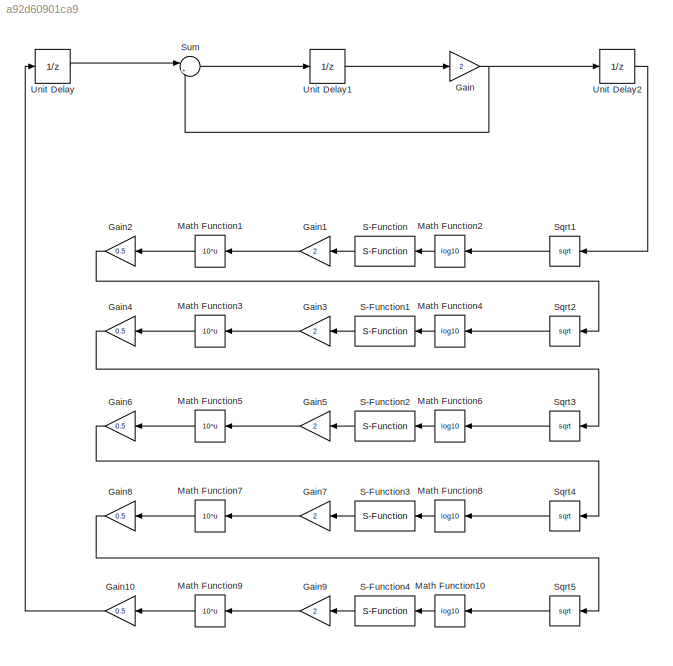
MODEL slx_a92d60901ca9
KIND model
CONFIG AbsTol = auto
CONFIG FixedStep = 0.002
CONFIG MaxStep = auto
CONFIG MinStep = auto
CONFIG RelTol = 1e-3
CONFIG SampleTimeConstraint = Unconstrained
CONFIG Solver = FixedStepDiscrete
CONFIG SolverMode = SingleTasking
CONFIG SolverName = FixedStepDiscrete
CONFIG StartTime = 0.0
CONFIG StopTime = 10.0
BLOCK [Gain] Gain
  Gain = 2
  OutDataTypeStr = Inherit: Inherit via internal rule
  ParamDataTypeStr = Inherit: Inherit via internal rule
  SampleTime = 0.002
  SaturateOnIntegerOverflow = off
BLOCK [Gain] Gain1
  Gain = 2
  OutDataTypeStr = Inherit: Inherit via internal rule
  ParamDataTypeStr = Inherit: Inherit via internal rule
  SampleTime = [0.002,0]
  SaturateOnIntegerOverflow = off
BLOCK [Gain] Gain10
  Gain = 0.5
  OutDataTypeStr = Inherit: Inherit via internal rule
  ParamDataTypeStr = Inherit: Inherit via internal rule
  SampleTime = [0.01,0]
  SaturateOnIntegerOverflow = off
BLOCK [Gain] Gain2
  Gain = 0.5
  OutDataTypeStr = Inherit: Inherit via internal rule
  ParamDataTypeStr = Inherit: Inherit via internal rule
  SampleTime = [0.002,0]
  SaturateOnIntegerOverflow = off
BLOCK [Gain] Gain3
  Gain = 2
  OutDataTypeStr = Inherit: Inherit via internal rule
  ParamDataTypeStr = Inherit: Inherit via internal rule
  SampleTime = [0.004,0]
  SaturateOnIntegerOverflow = off
BLOCK [Gain] Gain4
  Gain = 0.5
  OutDataTypeStr = Inherit: Inherit via internal rule
  ParamDataTypeStr = Inherit: Inherit via internal rule
  SampleTime = [0.004,0]
  SaturateOnIntegerOverflow = off
BLOCK [Gain] Gain5
  Gain = 2
  OutDataTypeStr = Inherit: Inherit via internal rule
  ParamDataTypeStr = Inherit: Inherit via internal rule
  SampleTime = [0.006,0]
  SaturateOnIntegerOverflow = off
BLOCK [Gain] Gain6
  Gain = 0.5
  OutDataTypeStr = Inherit: Inherit via internal rule
  ParamDataTypeStr = Inherit: Inherit via internal rule
  SampleTime = [0.006,0]
  SaturateOnIntegerOverflow = off
BLOCK [Gain] Gain7
  Gain = 2
  OutDataTypeStr = Inherit: Inherit via internal rule
  ParamDataTypeStr = Inherit: Inherit via internal rule
  SampleTime = [0.008,0]
  SaturateOnIntegerOverflow = off
BLOCK [Gain] Gain8
  Gain = 0.5
  OutDataTypeStr = Inherit: Inherit via internal rule
  ParamDataTypeStr = Inherit: Inherit via internal rule
  SampleTime = [0.008,0]
  SaturateOnIntegerOverflow = off
BLOCK [Gain] Gain9
  Gain = 2
  OutDataTypeStr = Inherit: Inherit via internal rule
  ParamDataTypeStr = Inherit: Inherit via internal rule
  SampleTime = [0.01,0]
  SaturateOnIntegerOverflow = off
BLOCK [Math] Math Function1
  Operator = 10^u
  Ports = [1, 1]
  SampleTime = [0.002,0]
BLOCK [Math] Math Function10
  Operator = log10
  Ports = [1, 1]
  SampleTime = [0.01,0]
BLOCK [Math] Math Function2
  Operator = log10
  Ports = [1, 1]
  SampleTime = [0.002,0]
BLOCK [Math] Math Function3
  Operator = 10^u
  Ports = [1, 1]
  SampleTime = [0.004,0]
BLOCK [Math] Math Function4
  Operator = log10
  Ports = [1, 1]
  SampleTime = [0.004,0]
BLOCK [Math] Math Function5
  Operator = 10^u
  Ports = [1, 1]
  SampleTime = [0.006,0]
BLOCK [Math] Math Function6
  Operator = log10
  Ports = [1, 1]
  SampleTime = [0.006,0]
BLOCK [Math] Math Function7
  Operator = 10^u
  Ports = [1, 1]
  SampleTime = [0.008,0]
BLOCK [Math] Math Function8
  Operator = log10
  Ports = [1, 1]
  SampleTime = [0.008,0]
BLOCK [Math] Math Function9
  Operator = 10^u
  Ports = [1, 1]
  SampleTime = [0.01,0]
BLOCK [S-Function] S-Function
  EnableBusSupport = off
  FunctionName = loop
  Ports = [1, 1]
BLOCK [S-Function] S-Function1
  EnableBusSupport = off
  FunctionName = loop
  Ports = [1, 1]
BLOCK [S-Function] S-Function2
  EnableBusSupport = off
  FunctionName = loop
  Ports = [1, 1]
BLOCK [S-Function] S-Function3
  EnableBusSupport = off
  FunctionName = loop
  Ports = [1, 1]
BLOCK [S-Function] S-Function4
  EnableBusSupport = off
  FunctionName = loop
  Ports = [1, 1]
BLOCK [Sqrt] Sqrt1
  SampleTime = [0.002,0]
BLOCK [Sqrt] Sqrt2
  SampleTime = [0.004,0]
BLOCK [Sqrt] Sqrt3
  SampleTime = [0.006,0]
BLOCK [Sqrt] Sqrt4
  SampleTime = [0.008,0]
BLOCK [Sqrt] Sqrt5
  SampleTime = [0.01,0]
BLOCK [Sum] Sum
  IconShape = round
  InputSameDT = off
  Inputs = |++
  OutDataTypeStr = Inherit: Inherit via internal rule
  Ports = [2, 1]
  SampleTime = 0.002
  SaturateOnIntegerOverflow = off
BLOCK [UnitDelay] Unit Delay
  InitialCondition = 1
  InputProcessing = Elements as channels (sample based)
  SampleTime = -1
BLOCK [UnitDelay] Unit Delay1
  InitialCondition = 2
  InputProcessing = Elements as channels (sample based)
  SampleTime = -1
BLOCK [UnitDelay] Unit Delay2
  InitialCondition = 1
  InputProcessing = Elements as channels (sample based)
  SampleTime = -1
LINE Gain10:1 -> Unit Delay:1
LINE Gain1:1 -> Math Function1:1
LINE Gain2:1 -> Sqrt2:1
LINE Gain3:1 -> Math Function3:1
LINE Gain4:1 -> Sqrt3:1
LINE Gain5:1 -> Math Function5:1
LINE Gain6:1 -> Sqrt4:1
LINE Gain7:1 -> Math Function7:1
LINE Gain8:1 -> Sqrt5:1
LINE Gain9:1 -> Math Function9:1
NET Gain:1 -> Sum:2, Unit Delay2:1
LINE Math Function10:1 -> S-Function4:1
LINE Math Function1:1 -> Gain2:1
LINE Math Function2:1 -> S-Function:1
LINE Math Function3:1 -> Gain4:1
LINE Math Function4:1 -> S-Function1:1
LINE Math Function5:1 -> Gain6:1
LINE Math Function6:1 -> S-Function2:1
LINE Math Function7:1 -> Gain8:1
LINE Math Function8:1 -> S-Function3:1
LINE Math Function9:1 -> Gain10:1
LINE S-Function1:1 -> Gain3:1
LINE S-Function2:1 -> Gain5:1
LINE S-Function3:1 -> Gain7:1
LINE S-Function4:1 -> Gain9:1
LINE S-Function:1 -> Gain1:1
LINE Sqrt1:1 -> Math Function2:1
LINE Sqrt2:1 -> Math Function4:1
LINE Sqrt3:1 -> Math Function6:1
LINE Sqrt4:1 -> Math Function8:1
LINE Sqrt5:1 -> Math Function10:1
LINE Sum:1 -> Unit Delay1:1
LINE Unit Delay1:1 -> Gain:1
LINE Unit Delay2:1 -> Sqrt1:1
LINE Unit Delay:1 -> Sum:1
note: NET lines group one-source signal fan-out (src -> all destinations, sorted); 1:1 wires keep LINE
